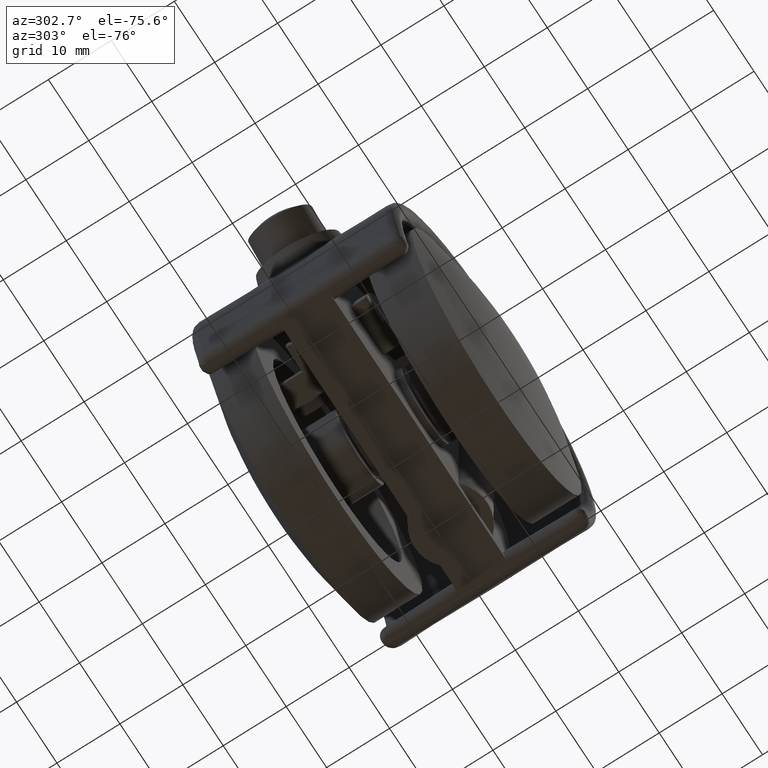
[diagram: clean part render]
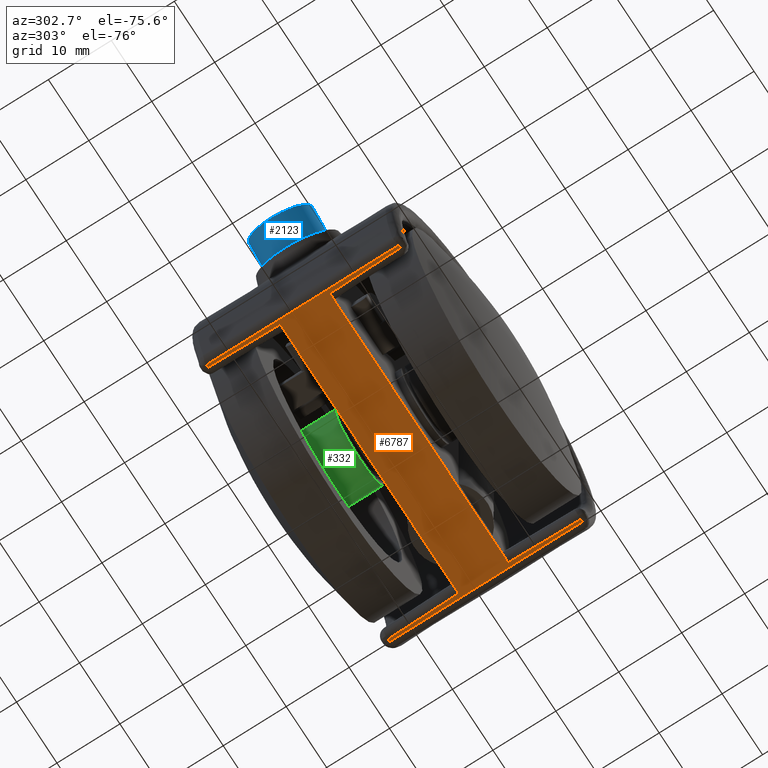
[diagram: same view with three faces highlighted in distinct colors, each labeled with its STEP entity id]
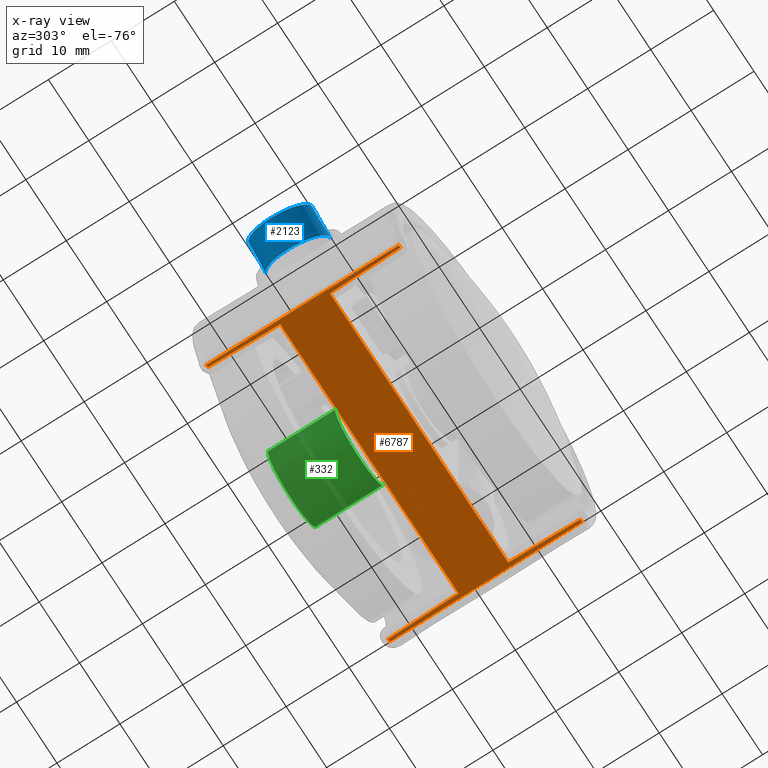
[diagram: x-ray of the same camera — body ghosted, the three highlighted faces saturated]
A machine part, auxiliary view with three faces highlighted in distinct colors.
The next image is the same camera in x-ray (body ghosted, the three faces saturated) — at least one of them is partly hidden behind the body in this view.
Their STEP definitions:

[orange] entity #6787 — the highlighted face is a freeform B-spline surface patch.
#4493=CARTESIAN_POINT('',(-22.069919937677799,-3.950000000000000,-9.700000000000001));
#4494=VERTEX_POINT('',#4493);
#4562=CARTESIAN_POINT('',(-22.286015014921698,-15.300000000000001,-9.700000000000001));
#4563=VERTEX_POINT('',#4562);
#4573=CARTESIAN_POINT('',(-22.069919937677799,-3.950000000000000,-9.700000000000001));
#4574=CARTESIAN_POINT('',(-22.099499015672961,-7.734022974811633,-9.700000000000001));
#4575=CARTESIAN_POINT('',(-22.171588934910989,-11.517591989419410,-9.700000000000001));
#4576=CARTESIAN_POINT('',(-22.286015014921649,-15.300000000000001,-9.700000000000001));
#4577=QUASI_UNIFORM_CURVE('',3,(#4573,#4574,#4575,#4576),.UNSPECIFIED.,.F.,.U.);
#4578=EDGE_CURVE('',#4494,#4563,#4577,.T.);
#4948=CARTESIAN_POINT('',(22.286015014921698,-15.300000000000001,-9.700000000000001));
#4949=VERTEX_POINT('',#4948);
#4950=CARTESIAN_POINT('',(22.069919937677749,-3.950000000000000,-9.700000000000001));
#4951=VERTEX_POINT('',#4950);
#4952=CARTESIAN_POINT('',(22.286015014921698,-15.300000000000001,-9.700000000000001));
#4953=CARTESIAN_POINT('',(22.171588934911039,-11.517591989419410,-9.700000000000001));
#4954=CARTESIAN_POINT('',(22.099499015673011,-7.734022974811633,-9.700000000000001));
#4955=CARTESIAN_POINT('',(22.069919937677749,-3.950000000000000,-9.700000000000001));
#4956=QUASI_UNIFORM_CURVE('',3,(#4952,#4953,#4954,#4955),.UNSPECIFIED.,.F.,.U.);
#4957=EDGE_CURVE('',#4949,#4951,#4956,.T.);
#5109=CARTESIAN_POINT('',(22.695375044268399,15.280739539795499,-9.700000000000001));
#5110=VERTEX_POINT('',#5109);
#5124=CARTESIAN_POINT('',(22.582073607177900,15.300000000000001,-9.700000000000001));
#5125=VERTEX_POINT('',#5124);
#5126=CARTESIAN_POINT('',(22.582073607177900,15.300000000000001,-9.700000000000001));
#5127=CARTESIAN_POINT('',(22.620932134522409,15.300000000000001,-9.700000000000001));
#5128=CARTESIAN_POINT('',(22.658709036317489,15.293637237748040,-9.700000000000001));
#5129=CARTESIAN_POINT('',(22.695375044268399,15.280739539795499,-9.700000000000001));
#5130=QUASI_UNIFORM_CURVE('',3,(#5126,#5127,#5128,#5129),.UNSPECIFIED.,.F.,.U.);
#5131=EDGE_CURVE('',#5125,#5110,#5130,.T.);
#5383=CARTESIAN_POINT('',(-22.695375044268399,15.280739539795499,-9.700000000000001));
#5384=VERTEX_POINT('',#5383);
#5385=CARTESIAN_POINT('',(-22.582073607177900,15.300000000000001,-9.700000000000001));
#5386=VERTEX_POINT('',#5385);
#5387=CARTESIAN_POINT('',(-22.695375044268399,15.280739539795499,-9.700000000000001));
#5388=CARTESIAN_POINT('',(-22.658968062889510,15.293546122116030,-9.700000000000001));
#5389=CARTESIAN_POINT('',(-22.620665086453968,15.300000000000340,-9.700000000000001));
#5390=CARTESIAN_POINT('',(-22.582073607177900,15.300000000000001,-9.700000000000001));
#5391=QUASI_UNIFORM_CURVE('',3,(#5387,#5388,#5389,#5390),.UNSPECIFIED.,.F.,.U.);
#5392=EDGE_CURVE('',#5384,#5386,#5391,.T.);
#5512=CARTESIAN_POINT('',(22.695375044268399,-15.280739539795601,-9.700000000000001));
#5513=VERTEX_POINT('',#5512);
#5537=CARTESIAN_POINT('',(22.695375044268399,15.280739539795499,-9.700000000000001));
#5538=CARTESIAN_POINT('',(22.695375044268399,-15.280739539795601,-9.700000000000001));
#5539=QUASI_UNIFORM_CURVE('',1,(#5537,#5538),.UNSPECIFIED.,.F.,.U.);
#5540=EDGE_CURVE('',#5110,#5513,#5539,.T.);
#5565=CARTESIAN_POINT('',(-22.695375044268399,-15.280739539795601,-9.700000000000001));
#5566=VERTEX_POINT('',#5565);
#5598=CARTESIAN_POINT('',(-22.695375044268399,-15.280739539795601,-9.700000000000001));
#5599=CARTESIAN_POINT('',(-22.695375044268399,15.280739539795499,-9.700000000000001));
#5600=QUASI_UNIFORM_CURVE('',1,(#5598,#5599),.UNSPECIFIED.,.F.,.U.);
#5601=EDGE_CURVE('',#5566,#5384,#5600,.T.);
#5891=CARTESIAN_POINT('',(22.582073607177900,-15.300000000000001,-9.700000000000001));
#5892=VERTEX_POINT('',#5891);
#5906=CARTESIAN_POINT('',(22.695375044268399,-15.280739539795601,-9.700000000000001));
#5907=CARTESIAN_POINT('',(22.658968062889510,-15.293546122116130,-9.700000000000001));
#5908=CARTESIAN_POINT('',(22.620665086453968,-15.300000000000489,-9.700000000000001));
#5909=CARTESIAN_POINT('',(22.582073607177900,-15.300000000000001,-9.700000000000001));
#5910=QUASI_UNIFORM_CURVE('',3,(#5906,#5907,#5908,#5909),.UNSPECIFIED.,.F.,.U.);
#5911=EDGE_CURVE('',#5513,#5892,#5910,.T.);
#5937=CARTESIAN_POINT('',(-22.582073607177900,-15.300000000000001,-9.700000000000001));
#5938=VERTEX_POINT('',#5937);
#5939=CARTESIAN_POINT('',(-22.582073607177900,-15.300000000000001,-9.700000000000001));
#5940=CARTESIAN_POINT('',(-22.620932134522398,-15.300000000000001,-9.700000000000001));
#5941=CARTESIAN_POINT('',(-22.658709036317489,-15.293637237748131,-9.700000000000001));
#5942=CARTESIAN_POINT('',(-22.695375044268399,-15.280739539795601,-9.700000000000001));
#5943=QUASI_UNIFORM_CURVE('',3,(#5939,#5940,#5941,#5942),.UNSPECIFIED.,.F.,.U.);
#5944=EDGE_CURVE('',#5938,#5566,#5943,.T.);
#5986=CARTESIAN_POINT('',(22.069919937677849,3.950000000000000,-9.700000000000001));
#5987=VERTEX_POINT('',#5986);
#6055=CARTESIAN_POINT('',(22.286015014921698,15.300000000000001,-9.700000000000001));
#6056=VERTEX_POINT('',#6055);
#6068=CARTESIAN_POINT('',(22.069919937677849,3.950000000000000,-9.700000000000001));
#6069=CARTESIAN_POINT('',(22.099499015673011,7.734022974811631,-9.700000000000001));
#6070=CARTESIAN_POINT('',(22.171588934910989,11.517591989419410,-9.700000000000001));
#6071=CARTESIAN_POINT('',(22.286015014921698,15.300000000000001,-9.700000000000001));
#6072=QUASI_UNIFORM_CURVE('',3,(#6068,#6069,#6070,#6071),.UNSPECIFIED.,.F.,.U.);
#6073=EDGE_CURVE('',#5987,#6056,#6072,.T.);
#6473=CARTESIAN_POINT('',(-22.286015014921698,15.300000000000001,-9.700000000000001));
#6474=VERTEX_POINT('',#6473);
#6475=CARTESIAN_POINT('',(-22.069919937677799,3.950000000000000,-9.700000000000001));
#6476=VERTEX_POINT('',#6475);
#6477=CARTESIAN_POINT('',(-22.286015014921698,15.300000000000001,-9.700000000000001));
#6478=CARTESIAN_POINT('',(-22.171588934911039,11.517591989419410,-9.700000000000001));
#6479=CARTESIAN_POINT('',(-22.099499015673011,7.734022974811633,-9.700000000000001));
#6480=CARTESIAN_POINT('',(-22.069919937677849,3.950000000000000,-9.700000000000001));
#6481=QUASI_UNIFORM_CURVE('',3,(#6477,#6478,#6479,#6480),.UNSPECIFIED.,.F.,.U.);
#6482=EDGE_CURVE('',#6474,#6476,#6481,.T.);
#6632=CARTESIAN_POINT('',(22.582073607177900,-15.300000000000001,-9.700000000000001));
#6633=CARTESIAN_POINT('',(22.286015014921698,-15.300000000000001,-9.700000000000001));
#6634=QUASI_UNIFORM_CURVE('',1,(#6632,#6633),.UNSPECIFIED.,.F.,.U.);
#6635=EDGE_CURVE('',#5892,#4949,#6634,.T.);
#6655=CARTESIAN_POINT('',(22.286015014921698,15.300000000000001,-9.700000000000001));
#6656=CARTESIAN_POINT('',(22.582073607177900,15.300000000000001,-9.700000000000001));
#6657=QUASI_UNIFORM_CURVE('',1,(#6655,#6656),.UNSPECIFIED.,.F.,.U.);
#6658=EDGE_CURVE('',#6056,#5125,#6657,.T.);
#6684=CARTESIAN_POINT('',(-22.582073607177900,15.300000000000001,-9.700000000000001));
#6685=CARTESIAN_POINT('',(-22.286015014921698,15.300000000000001,-9.700000000000001));
#6686=QUASI_UNIFORM_CURVE('',1,(#6684,#6685),.UNSPECIFIED.,.F.,.U.);
#6687=EDGE_CURVE('',#5386,#6474,#6686,.T.);
#6719=CARTESIAN_POINT('',(-22.286015014921698,-15.300000000000001,-9.700000000000001));
#6720=CARTESIAN_POINT('',(-22.582073607177900,-15.300000000000001,-9.700000000000001));
#6721=QUASI_UNIFORM_CURVE('',1,(#6719,#6720),.UNSPECIFIED.,.F.,.U.);
#6722=EDGE_CURVE('',#4563,#5938,#6721,.T.);
#6756=CARTESIAN_POINT('',(-24.962643349310621,-16.828470227942169,-9.700000000000001));
#6757=CARTESIAN_POINT('',(24.962644160960480,-16.828470227942169,-9.700000000000001));
#6758=CARTESIAN_POINT('',(-24.962643349310621,16.828470775112809,-9.700000000000001));
#6759=CARTESIAN_POINT('',(24.962644160960480,16.828470775112809,-9.700000000000001));
#6760=B_SPLINE_SURFACE_WITH_KNOTS('',1,1,((#6756,#6758),(#6757,#6759)),.UNSPECIFIED.,.F.,.F.,.U.,(2,2),(2,2),(0.0,49.925287510271097),(0.0,33.656941003054982),.UNSPECIFIED.);
#6761=CARTESIAN_POINT('',(-22.069919937677799,3.950000000000000,-9.700000000000001));
#6762=CARTESIAN_POINT('',(22.069919937677849,3.950000000000000,-9.700000000000001));
#6763=QUASI_UNIFORM_CURVE('',1,(#6761,#6762),.UNSPECIFIED.,.F.,.U.);
#6764=EDGE_CURVE('',#6476,#5987,#6763,.T.);
#6765=ORIENTED_EDGE('',*,*,#6764,.T.);
#6766=ORIENTED_EDGE('',*,*,#6073,.T.);
#6767=ORIENTED_EDGE('',*,*,#6658,.T.);
#6768=ORIENTED_EDGE('',*,*,#5131,.T.);
#6769=ORIENTED_EDGE('',*,*,#5540,.T.);
#6770=ORIENTED_EDGE('',*,*,#5911,.T.);
#6771=ORIENTED_EDGE('',*,*,#6635,.T.);
#6772=ORIENTED_EDGE('',*,*,#4957,.T.);
#6773=CARTESIAN_POINT('',(22.069919937677749,-3.950000000000000,-9.700000000000001));
#6774=CARTESIAN_POINT('',(-22.069919937677799,-3.950000000000000,-9.700000000000001));
#6775=QUASI_UNIFORM_CURVE('',1,(#6773,#6774),.UNSPECIFIED.,.F.,.U.);
#6776=EDGE_CURVE('',#4951,#4494,#6775,.T.);
#6777=ORIENTED_EDGE('',*,*,#6776,.T.);
#6778=ORIENTED_EDGE('',*,*,#4578,.T.);
#6779=ORIENTED_EDGE('',*,*,#6722,.T.);
#6780=ORIENTED_EDGE('',*,*,#5944,.T.);
#6781=ORIENTED_EDGE('',*,*,#5601,.T.);
#6782=ORIENTED_EDGE('',*,*,#5392,.T.);
#6783=ORIENTED_EDGE('',*,*,#6687,.T.);
#6784=ORIENTED_EDGE('',*,*,#6482,.T.);
#6785=EDGE_LOOP('',(#6765,#6766,#6767,#6768,#6769,#6770,#6771,#6772,#6777,#6778,#6779,#6780,#6781,#6782,#6783,#6784));
#6786=FACE_OUTER_BOUND('',#6785,.T.);
#6787=ADVANCED_FACE('',(#6786),#6760,.F.);

[blue] entity #2123 — the highlighted face is a freeform B-spline surface patch.
#2021=CARTESIAN_POINT('',(-28.004397091707698,-4.865746739087709,16.184369873791670));
#2022=CARTESIAN_POINT('',(-28.071909537010463,-4.882299375807702,16.062574198062183));
#2023=CARTESIAN_POINT('',(-28.139770437831832,-4.890860572482084,15.940149891934849));
#2024=CARTESIAN_POINT('',(-30.510906689767712,-5.189998419885785,11.662506847662071));
#2025=CARTESIAN_POINT('',(-30.655931595669909,-0.299137847403700,11.400874991005860));
#2026=CARTESIAN_POINT('',(-30.800956501572109,4.591722725078385,11.139243134349639));
#2027=CARTESIAN_POINT('',(-28.429820249636219,4.890860572482084,15.416886178622420));
#2028=CARTESIAN_POINT('',(-23.409910622224210,-4.865746739087709,13.637604443841383));
#2029=CARTESIAN_POINT('',(-23.477423067526967,-4.882299375807702,13.515808768111896));
#2030=CARTESIAN_POINT('',(-23.545283968348340,-4.890860572482084,13.393384461984560));
#2031=CARTESIAN_POINT('',(-25.916420220284216,-5.189998419885785,9.115741417711789));
#2032=CARTESIAN_POINT('',(-26.061445126186420,-0.299137847403700,8.854109561055573));
#2033=CARTESIAN_POINT('',(-26.206470032088614,4.591722725078385,8.592477704399357));
#2034=CARTESIAN_POINT('',(-23.835333780152741,4.890860572482084,12.870120748672131));
#2042=(BOUNDED_SURFACE()B_SPLINE_SURFACE(2,1,((#2021,#2028),(#2022,#2029),(#2023,#2030),(#2024,#2031),(#2025,#2032),(#2026,#2033),(#2027,#2034)),.UNSPECIFIED.,.F.,.F.,.U.)B_SPLINE_SURFACE_WITH_KNOTS((3,2,2,3),(2,2),(0.0,0.324743436898659,8.443329359365132,16.561915281831610),(0.0,5.253124791346262),.UNSPECIFIED.)GEOMETRIC_REPRESENTATION_ITEM()RATIONAL_B_SPLINE_SURFACE(((0.977505800795127,0.977505800795127),(0.988284271247462,0.988284271247462),(1.0,1.0),(0.707106781186548,0.707106781186548),(1.0,1.0),(0.707106781186548,0.707106781186548),(1.0,1.0)))REPRESENTATION_ITEM('')SURFACE());
#2043=CARTESIAN_POINT('',(-23.521971274237721,-4.865746626911431,13.699720662264770));
#2044=VERTEX_POINT('',#2043);
#2045=CARTESIAN_POINT('',(-26.177936573883379,0.0,8.908232412450639));
#2046=VERTEX_POINT('',#2045);
#2047=CARTESIAN_POINT('',(-23.521971274237725,-4.865746626911431,13.699720662264768));
#2048=CARTESIAN_POINT('',(-23.661678652350503,-4.899999834418920,13.447681879706503));
#2049=CARTESIAN_POINT('',(-23.802369519847701,-4.899999834418920,13.193868835327139));
#2050=CARTESIAN_POINT('',(-26.177936573883382,-4.899999834418921,8.908232412450639));
#2051=CARTESIAN_POINT('',(-26.177936573883379,0.0,8.908232412450639));
#2059=(BOUNDED_CURVE()B_SPLINE_CURVE(2,(#2047,#2048,#2049,#2050,#2051),.UNSPECIFIED.,.F.,.U.)B_SPLINE_CURVE_WITH_KNOTS((3,2,3),(0.729562473508859,0.750000000000000,1.0),.UNSPECIFIED.)CURVE()GEOMETRIC_REPRESENTATION_ITEM()RATIONAL_B_SPLINE_CURVE((0.956026754174586,0.976055948325698,1.0,0.707106781186548,1.0))REPRESENTATION_ITEM(''));
#2060=EDGE_CURVE('',#2044,#2046,#2059,.T.);
#2061=ORIENTED_EDGE('',*,*,#2060,.F.);
#2062=CARTESIAN_POINT('',(-27.895069626077440,-4.865746851240758,16.123768685539130));
#2063=VERTEX_POINT('',#2062);
#2064=CARTESIAN_POINT('',(-27.895069626077440,-4.865746851240758,16.123768685539130));
#2065=CARTESIAN_POINT('',(-23.521971274237721,-4.865746626911431,13.699720662264770));
#2066=QUASI_UNIFORM_CURVE('',1,(#2064,#2065),.UNSPECIFIED.,.F.,.U.);
#2067=EDGE_CURVE('',#2063,#2044,#2066,.T.);
#2068=ORIENTED_EDGE('',*,*,#2067,.F.);
#2069=CARTESIAN_POINT('',(-30.551035157695789,0.0,11.332280017235179));
#2070=VERTEX_POINT('',#2069);
#2071=CARTESIAN_POINT('',(-27.895069626077444,-4.865746851240757,16.123768685539126));
#2072=CARTESIAN_POINT('',(-28.034777004144875,-4.900000286235989,15.871729903062652));
#2073=CARTESIAN_POINT('',(-28.175467884614850,-4.900000286235990,15.617916835279800));
#2074=CARTESIAN_POINT('',(-30.551035157695789,-4.900000286235990,11.332280017235181));
#2075=CARTESIAN_POINT('',(-30.551035157695789,0.0,11.332280017235179));
#2083=(BOUNDED_CURVE()B_SPLINE_CURVE(2,(#2071,#2072,#2073,#2074,#2075),.UNSPECIFIED.,.F.,.U.)B_SPLINE_CURVE_WITH_KNOTS((3,2,3),(0.729562473508858,0.750000000000000,1.0),.UNSPECIFIED.)CURVE()GEOMETRIC_REPRESENTATION_ITEM()RATIONAL_B_SPLINE_CURVE((0.956026754174585,0.976055948325697,1.0,0.707106781186548,1.0))REPRESENTATION_ITEM(''));
#2084=EDGE_CURVE('',#2063,#2070,#2083,.T.);
#2085=ORIENTED_EDGE('',*,*,#2084,.T.);
#2086=CARTESIAN_POINT('',(-28.320492793915211,4.890860685218721,15.356284972493141));
#2087=VERTEX_POINT('',#2086);
#2088=CARTESIAN_POINT('',(-30.551035157695789,0.0,11.332280017235179));
#2089=CARTESIAN_POINT('',(-30.551035157695786,4.609459996887344,11.332280017235183));
#2090=CARTESIAN_POINT('',(-28.320492793915204,4.890860685218721,15.356284972493143));
#2098=(BOUNDED_CURVE()B_SPLINE_CURVE(2,(#2088,#2089,#2090),.UNSPECIFIED.,.F.,.U.)B_SPLINE_CURVE_WITH_KNOTS((3,3),(0.0,0.239332962233954),.UNSPECIFIED.)CURVE()GEOMETRIC_REPRESENTATION_ITEM()RATIONAL_B_SPLINE_CURVE((1.0,0.719603993292555,0.976072041656026))REPRESENTATION_ITEM(''));
#2099=EDGE_CURVE('',#2070,#2087,#2098,.T.);
#2100=ORIENTED_EDGE('',*,*,#2099,.T.);
#2101=CARTESIAN_POINT('',(-23.947394422461869,4.890860459731550,12.932236984602680));
#2102=VERTEX_POINT('',#2101);
#2103=CARTESIAN_POINT('',(-28.320492793915211,4.890860685218721,15.356284972493141));
#2104=CARTESIAN_POINT('',(-23.947394422461869,4.890860459731550,12.932236984602680));
#2105=QUASI_UNIFORM_CURVE('',1,(#2103,#2104),.UNSPECIFIED.,.F.,.U.);
#2106=EDGE_CURVE('',#2087,#2102,#2105,.T.);
#2107=ORIENTED_EDGE('',*,*,#2106,.T.);
#2108=CARTESIAN_POINT('',(-26.177936573883379,0.0,8.908232412450639));
#2109=CARTESIAN_POINT('',(-26.177936573883375,4.609459571860267,8.908232412450637));
#2110=CARTESIAN_POINT('',(-23.947394422461869,4.890860459731551,12.932236984602682));
#2118=(BOUNDED_CURVE()B_SPLINE_CURVE(2,(#2108,#2109,#2110),.UNSPECIFIED.,.F.,.U.)B_SPLINE_CURVE_WITH_KNOTS((3,3),(0.0,0.239332962233954),.UNSPECIFIED.)CURVE()GEOMETRIC_REPRESENTATION_ITEM()RATIONAL_B_SPLINE_CURVE((1.0,0.719603993292556,0.976072041656024))REPRESENTATION_ITEM(''));
#2119=EDGE_CURVE('',#2046,#2102,#2118,.T.);
#2120=ORIENTED_EDGE('',*,*,#2119,.F.);
#2121=EDGE_LOOP('',(#2061,#2068,#2085,#2100,#2107,#2120));
#2122=FACE_OUTER_BOUND('',#2121,.T.);
#2123=ADVANCED_FACE('',(#2122),#2042,.T.);

[green] entity #332 — the highlighted face is a freeform B-spline surface patch.
#230=CARTESIAN_POINT('',(5.958057158181998,-16.501150062613323,0.708205407940551));
#231=CARTESIAN_POINT('',(5.978325692691634,-16.501150062613323,0.537688371827866));
#232=CARTESIAN_POINT('',(5.988808790531200,-16.501150062613320,0.366291237209142));
#233=CARTESIAN_POINT('',(6.355100027740342,-16.501150062613316,-5.622517553322059));
#234=CARTESIAN_POINT('',(0.366291237209142,-16.501150062613320,-5.988808790531200));
#235=CARTESIAN_POINT('',(-5.622517553322059,-16.501150062613316,-6.355100027740342));
#236=CARTESIAN_POINT('',(-5.988808790531200,-16.501150062613320,-0.366291237209142));
#237=CARTESIAN_POINT('',(5.958057158181998,-5.224971248434668,0.708205407940551));
#238=CARTESIAN_POINT('',(5.978325692691634,-5.224971248434668,0.537688371827866));
#239=CARTESIAN_POINT('',(5.988808790531200,-5.224971248434667,0.366291237209142));
#240=CARTESIAN_POINT('',(6.355100027740342,-5.224971248434667,-5.622517553322059));
#241=CARTESIAN_POINT('',(0.366291237209142,-5.224971248434667,-5.988808790531200));
#242=CARTESIAN_POINT('',(-5.622517553322059,-5.224971248434667,-6.355100027740342));
#243=CARTESIAN_POINT('',(-5.988808790531200,-5.224971248434667,-0.366291237209142));
#251=(BOUNDED_SURFACE()B_SPLINE_SURFACE(2,1,((#230,#237),(#231,#238),(#232,#239),(#233,#240),(#234,#241),(#235,#242),(#236,#243)),.UNSPECIFIED.,.F.,.F.,.U.)B_SPLINE_SURFACE_WITH_KNOTS((3,2,2,3),(2,2),(0.0,0.397645019878172,10.338770516832451,20.279896013786729),(0.0,11.276178814178660),.UNSPECIFIED.)GEOMETRIC_REPRESENTATION_ITEM()RATIONAL_B_SPLINE_SURFACE(((0.977505800795127,0.977505800795127),(0.988284271247462,0.988284271247462),(1.0,1.0),(0.707106781186548,0.707106781186548),(1.0,1.0),(0.707106781186548,0.707106781186548),(1.0,1.0)))REPRESENTATION_ITEM('')SURFACE());
#252=CARTESIAN_POINT('',(5.958057158173149,-5.500000000000000,0.708205408014996));
#253=VERTEX_POINT('',#252);
#254=CARTESIAN_POINT('',(0.0,-5.500000000000000,-6.0));
#255=VERTEX_POINT('',#254);
#256=CARTESIAN_POINT('',(5.958057158173149,-5.500000000000001,0.708205408014996));
#257=CARTESIAN_POINT('',(6.000000000000001,-5.500000000000000,0.355344717986694));
#258=CARTESIAN_POINT('',(6.0,-5.500000000000000,0.0));
#259=CARTESIAN_POINT('',(6.0,-5.500000000000001,-6.0));
#260=CARTESIAN_POINT('',(0.0,-5.500000000000000,-6.0));
#268=(BOUNDED_CURVE()B_SPLINE_CURVE(2,(#256,#257,#258,#259,#260),.UNSPECIFIED.,.F.,.U.)B_SPLINE_CURVE_WITH_KNOTS((3,2,3),(0.229562473511421,0.250000000000000,0.500000000000000),.UNSPECIFIED.)CURVE()GEOMETRIC_REPRESENTATION_ITEM()RATIONAL_B_SPLINE_CURVE((0.956026754179608,0.976055948328699,1.0,0.707106781186548,1.0))REPRESENTATION_ITEM(''));
#269=EDGE_CURVE('',#253,#255,#268,.T.);
#270=ORIENTED_EDGE('',*,*,#269,.F.);
#271=CARTESIAN_POINT('',(5.958057158173149,-16.232829329378848,0.708205408014997));
#272=VERTEX_POINT('',#271);
#273=CARTESIAN_POINT('',(5.958057158173149,-16.232829329378848,0.708205408014997));
#274=CARTESIAN_POINT('',(5.958057158173149,-5.500000000000000,0.708205408014996));
#275=QUASI_UNIFORM_CURVE('',1,(#273,#274),.UNSPECIFIED.,.F.,.U.);
#276=EDGE_CURVE('',#272,#253,#275,.T.);
#277=ORIENTED_EDGE('',*,*,#276,.F.);
#278=CARTESIAN_POINT('',(0.0,-16.232829329378848,-6.0));
#279=VERTEX_POINT('',#278);
#280=CARTESIAN_POINT('',(5.958057158173149,-16.232829329378852,0.708205408014997));
#281=CARTESIAN_POINT('',(6.0,-16.232829329378852,0.355344717986694));
#282=CARTESIAN_POINT('',(6.0,-16.232829329378848,0.0));
#283=CARTESIAN_POINT('',(6.0,-16.232829329378845,-6.0));
#284=CARTESIAN_POINT('',(0.0,-16.232829329378848,-6.0));
#292=(BOUNDED_CURVE()B_SPLINE_CURVE(2,(#280,#281,#282,#283,#284),.UNSPECIFIED.,.F.,.U.)B_SPLINE_CURVE_WITH_KNOTS((3,2,3),(0.229562473511421,0.250000000000000,0.500000000000000),.UNSPECIFIED.)CURVE()GEOMETRIC_REPRESENTATION_ITEM()RATIONAL_B_SPLINE_CURVE((0.956026754179608,0.976055948328699,1.0,0.707106781186548,1.0))REPRESENTATION_ITEM(''));
#293=EDGE_CURVE('',#272,#279,#292,.T.);
#294=ORIENTED_EDGE('',*,*,#293,.T.);
#295=CARTESIAN_POINT('',(-5.988809225545692,-16.232829329378848,-0.366284124646463));
#296=VERTEX_POINT('',#295);
#297=CARTESIAN_POINT('',(0.0,-16.232829329378848,-6.0));
#298=CARTESIAN_POINT('',(-5.644243117297799,-16.232829329378852,-6.000000000000002));
#299=CARTESIAN_POINT('',(-5.988809225545692,-16.232829329378845,-0.366284124646463));
#307=(BOUNDED_CURVE()B_SPLINE_CURVE(2,(#297,#298,#299),.UNSPECIFIED.,.F.,.U.)B_SPLINE_CURVE_WITH_KNOTS((3,3),(0.500000000000000,0.739333167165867),.UNSPECIFIED.)CURVE()GEOMETRIC_REPRESENTATION_ITEM()RATIONAL_B_SPLINE_CURVE((1.0,0.719603753199885,0.976072480864519))REPRESENTATION_ITEM(''));
#308=EDGE_CURVE('',#279,#296,#307,.T.);
#309=ORIENTED_EDGE('',*,*,#308,.T.);
#310=CARTESIAN_POINT('',(-5.988809230990668,-5.499999999999938,-0.366284035618390));
#311=VERTEX_POINT('',#310);
#312=CARTESIAN_POINT('',(-5.988809225545692,-16.232829329378848,-0.366284124646463));
#313=CARTESIAN_POINT('',(-5.988809230990668,-5.499999999999938,-0.366284035618390));
#314=QUASI_UNIFORM_CURVE('',1,(#312,#313),.UNSPECIFIED.,.F.,.U.);
#315=EDGE_CURVE('',#296,#311,#314,.T.);
#316=ORIENTED_EDGE('',*,*,#315,.T.);
#317=CARTESIAN_POINT('',(0.0,-5.500000000000000,-6.0));
#318=CARTESIAN_POINT('',(-5.644243201360425,-5.499999999999999,-6.0));
#319=CARTESIAN_POINT('',(-5.988809230990668,-5.499999999999938,-0.366284035618390));
#327=(BOUNDED_CURVE()B_SPLINE_CURVE(2,(#317,#318,#319),.UNSPECIFIED.,.F.,.U.)B_SPLINE_CURVE_WITH_KNOTS((3,3),(0.500000000000000,0.739333169730903),.UNSPECIFIED.)CURVE()GEOMETRIC_REPRESENTATION_ITEM()RATIONAL_B_SPLINE_CURVE((1.0,0.719603750194758,0.976072486361890))REPRESENTATION_ITEM(''));
#328=EDGE_CURVE('',#255,#311,#327,.T.);
#329=ORIENTED_EDGE('',*,*,#328,.F.);
#330=EDGE_LOOP('',(#270,#277,#294,#309,#316,#329));
#331=FACE_OUTER_BOUND('',#330,.T.);
#332=ADVANCED_FACE('',(#331),#251,.T.);